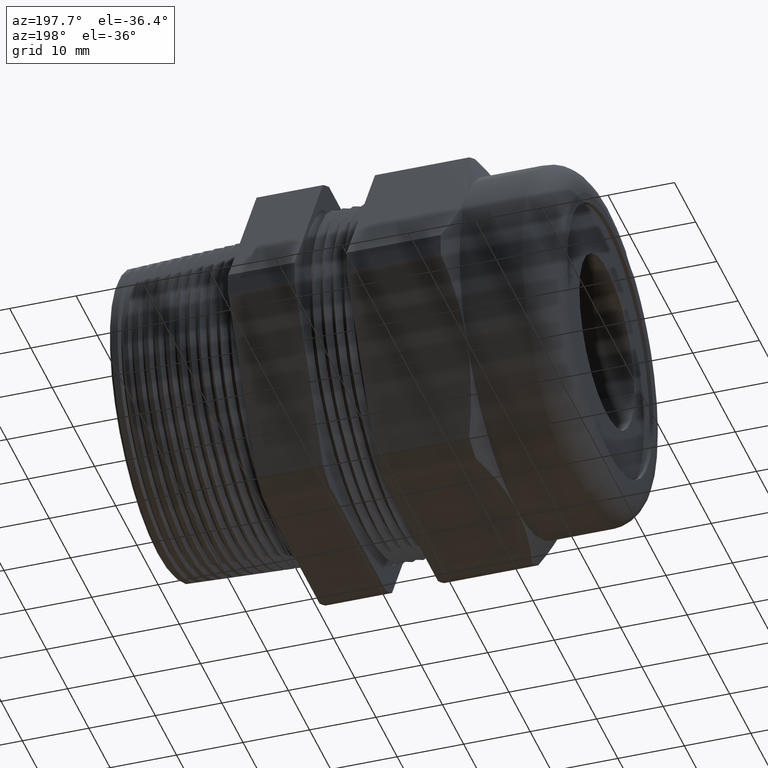
[diagram: clean part render]
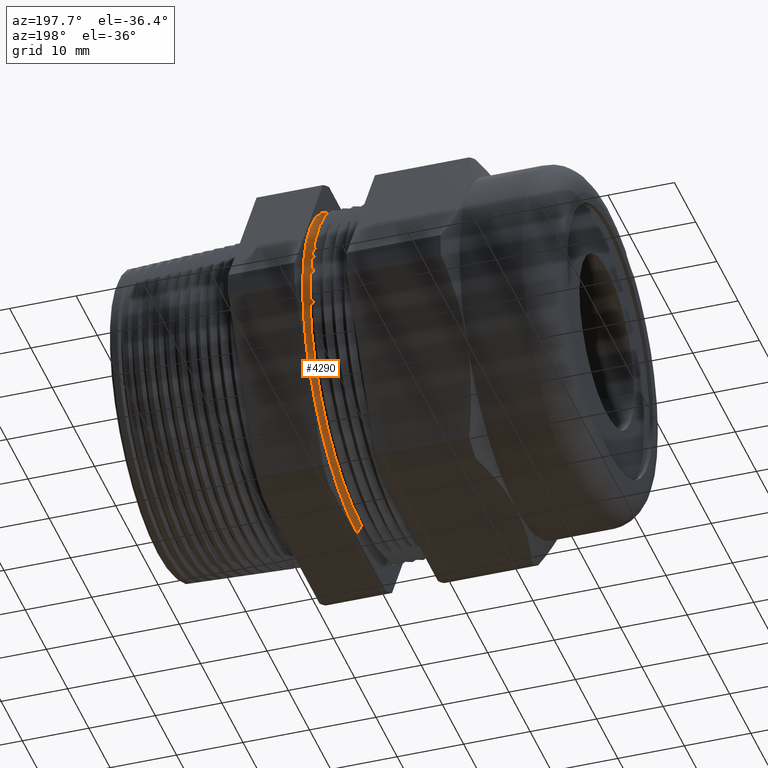
[diagram: same view with one face highlighted and labeled with its STEP entity id]
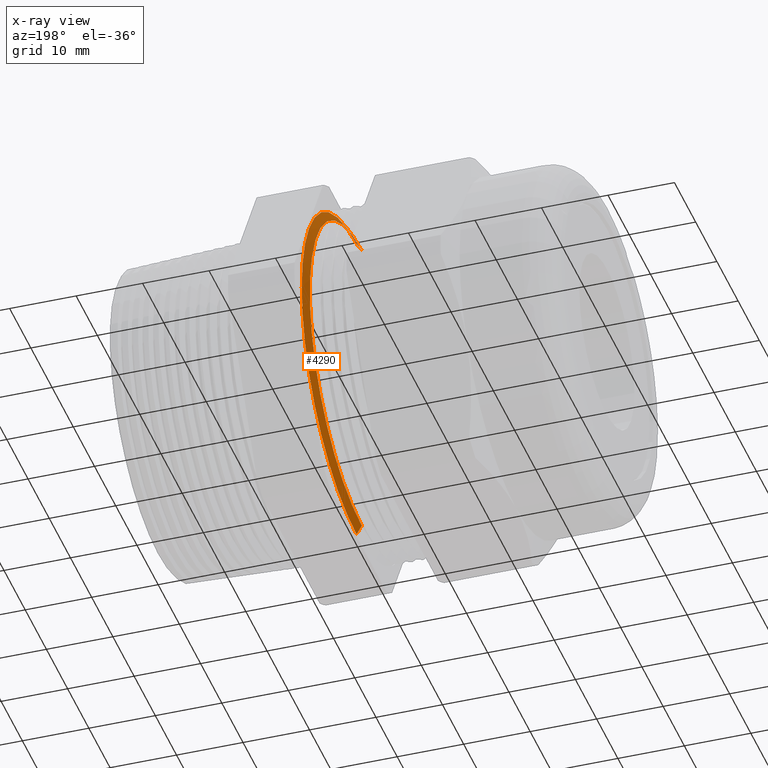
[diagram: x-ray of the same camera — body ghosted, the highlighted face saturated]
A machine part, auxiliary view. The second image highlights one B-rep face of the part: STEP entity #4290.
The next image is the same camera in x-ray: the body ghosted, the highlighted face saturated — about 2% of this face is hidden behind the body in this view.
In plain terms, the highlighted conical surface has half-angle 60 deg.
Its self-contained STEP definition (entity closure, byte-faithful):
#1503 = ORIENTED_EDGE ( 'NONE', *, *, #1519, .F. ) ;
#1506 = VERTEX_POINT ( 'NONE', #2903 ) ;
#1519 = EDGE_CURVE ( 'NONE', #4303, #1506, #2959, .T. ) ;
#1521 = VERTEX_POINT ( 'NONE', #2945 ) ;
#1524 = ORIENTED_EDGE ( 'NONE', *, *, #1525, .F. ) ;
#1525 = EDGE_CURVE ( 'NONE', #1506, #1521, #2944, .T. ) ;
#1544 = EDGE_CURVE ( 'NONE', #4328, #1521, #2970, .T. ) ;
#2903 = CARTESIAN_POINT ( 'NONE',  ( -0.3872500289075071500, 0.0000000000000000000, -1.017600000000000100 ) ) ;
#2940 = DIRECTION ( 'NONE',  ( 0.0000000000000000000, 0.0000000000000000000, -1.000000000000000000 ) ) ;
#2941 = DIRECTION ( 'NONE',  ( 1.000000000000000000, 0.0000000000000000000, 0.0000000000000000000 ) ) ;
#2942 = CARTESIAN_POINT ( 'NONE',  ( -0.3872500289075071500, 0.0000000000000000000, 0.0000000000000000000 ) ) ;
#2943 = AXIS2_PLACEMENT_3D ( 'NONE', #2942, #2941, #2940 ) ;
#2944 = CIRCLE ( 'NONE', #2943, 1.017600000000000100 ) ;
#2945 = CARTESIAN_POINT ( 'NONE',  ( -0.3872500289075071500, 1.246200582812346700E-016, 1.017600000000000100 ) ) ;
#2952 = DIRECTION ( 'NONE',  ( 0.5000000000000027800, 0.0000000000000000000, -0.8660254037844369300 ) ) ;
#2953 = VECTOR ( 'NONE', #2952, 39.37007874015748100 ) ;
#2954 = CARTESIAN_POINT ( 'NONE',  ( -0.4182500144537540400, 0.0000000000000000000, -0.9639064500000000800 ) ) ;
#2959 = LINE ( 'NONE', #2954, #2953 ) ;
#2967 = DIRECTION ( 'NONE',  ( 0.5000000000000027800, 1.060575238724904800E-016, 0.8660254037844369300 ) ) ;
#2968 = VECTOR ( 'NONE', #2967, 39.37007874015748100 ) ;
#2969 = CARTESIAN_POINT ( 'NONE',  ( -0.4182500144537540400, 1.180444948669988400E-016, 0.9639064500000000800 ) ) ;
#2970 = LINE ( 'NONE', #2969, #2968 ) ;
#3546 = DIRECTION ( 'NONE',  ( 0.0000000000000000000, 0.0000000000000000000, -1.000000000000000000 ) ) ;
#3547 = DIRECTION ( 'NONE',  ( 1.000000000000000000, 0.0000000000000000000, 0.0000000000000000000 ) ) ;
#3548 = CARTESIAN_POINT ( 'NONE',  ( -0.4182500144537540400, 0.0000000000000000000, 0.0000000000000000000 ) ) ;
#3549 = AXIS2_PLACEMENT_3D ( 'NONE', #3548, #3547, #3546 ) ;
#3550 = CONICAL_SURFACE ( 'NONE', #3549, 0.9639064500000000800, 1.047197551196594500 ) ;
#3551 = FACE_OUTER_BOUND ( 'NONE', #4298, .T. ) ;
#3589 = DIRECTION ( 'NONE',  ( 0.0000000000000000000, 0.0000000000000000000, -1.000000000000000000 ) ) ;
#3590 = DIRECTION ( 'NONE',  ( 1.000000000000000000, 0.0000000000000000000, 0.0000000000000000000 ) ) ;
#3591 = CARTESIAN_POINT ( 'NONE',  ( -0.4182500144537540400, 0.0000000000000000000, 0.0000000000000000000 ) ) ;
#3592 = AXIS2_PLACEMENT_3D ( 'NONE', #3591, #3590, #3589 ) ;
#3593 = CIRCLE ( 'NONE', #3592, 0.9639064500000000800 ) ;
#3594 = CARTESIAN_POINT ( 'NONE',  ( -0.4182500144537540400, 0.0000000000000000000, -0.9639064500000000800 ) ) ;
#3659 = CARTESIAN_POINT ( 'NONE',  ( -0.4182500144537540400, 1.213322765741167400E-016, 0.9639064500000000800 ) ) ;
#4288 = ORIENTED_EDGE ( 'NONE', *, *, #1544, .T. ) ;
#4289 = ORIENTED_EDGE ( 'NONE', *, *, #4305, .T. ) ;
#4290 = ADVANCED_FACE ( 'NONE', ( #3551 ), #3550, .T. ) ;
#4298 = EDGE_LOOP ( 'NONE', ( #4289, #4288, #1524, #1503 ) ) ;
#4303 = VERTEX_POINT ( 'NONE', #3594 ) ;
#4305 = EDGE_CURVE ( 'NONE', #4303, #4328, #3593, .T. ) ;
#4328 = VERTEX_POINT ( 'NONE', #3659 ) ;